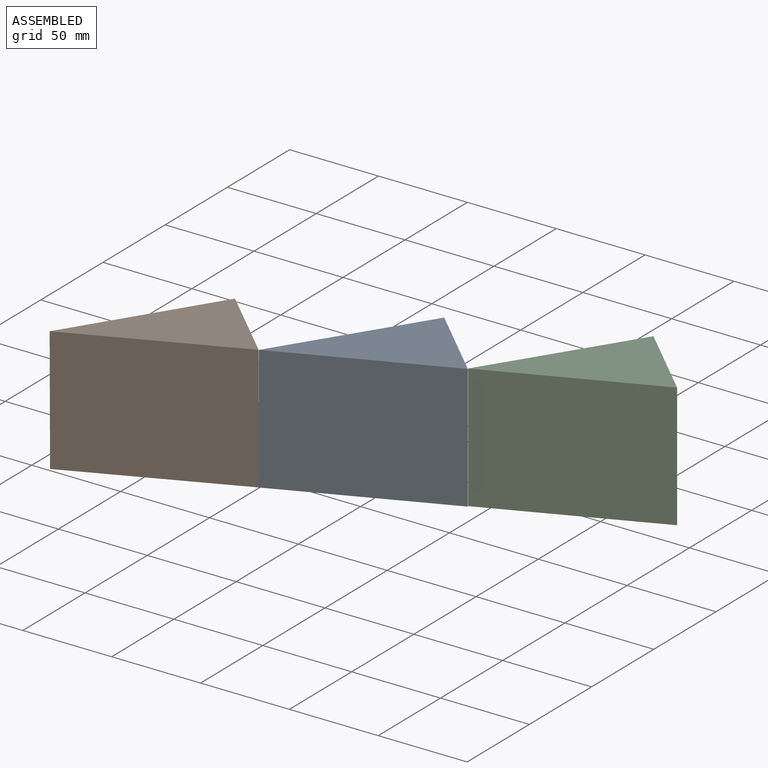
[diagram: assembled view]
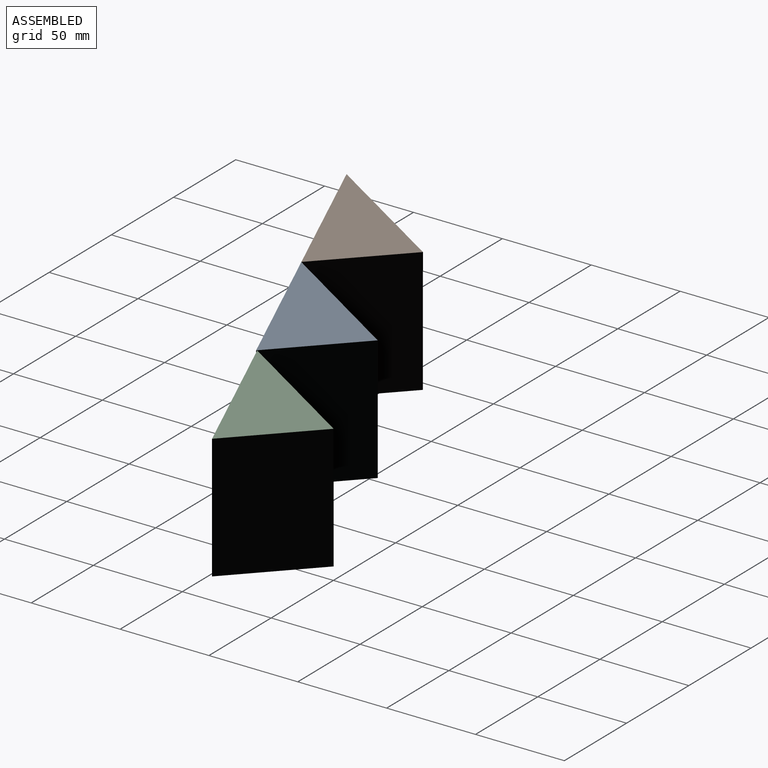
[diagram: assembled view, second angle]
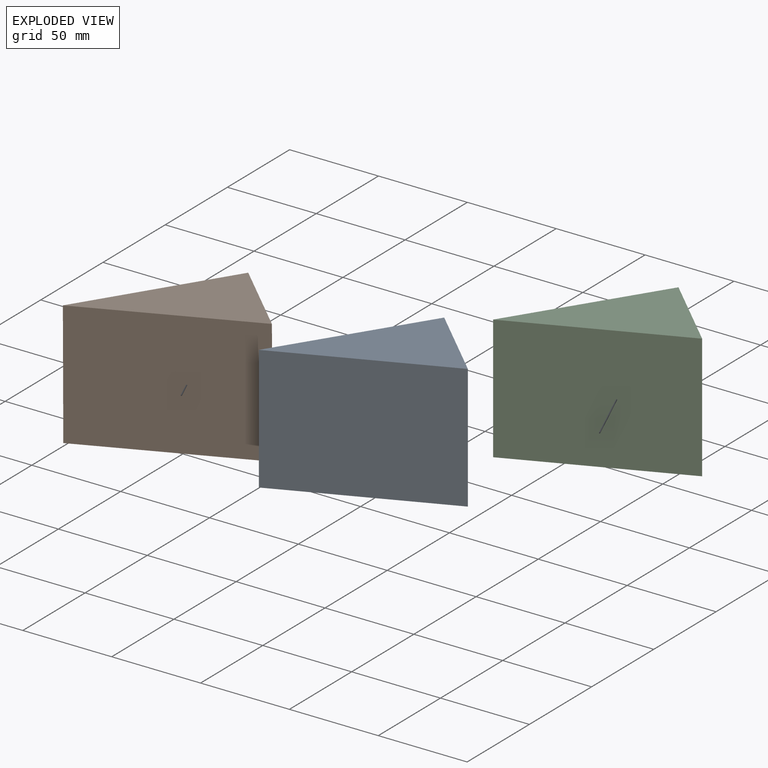
[diagram: exploded view]
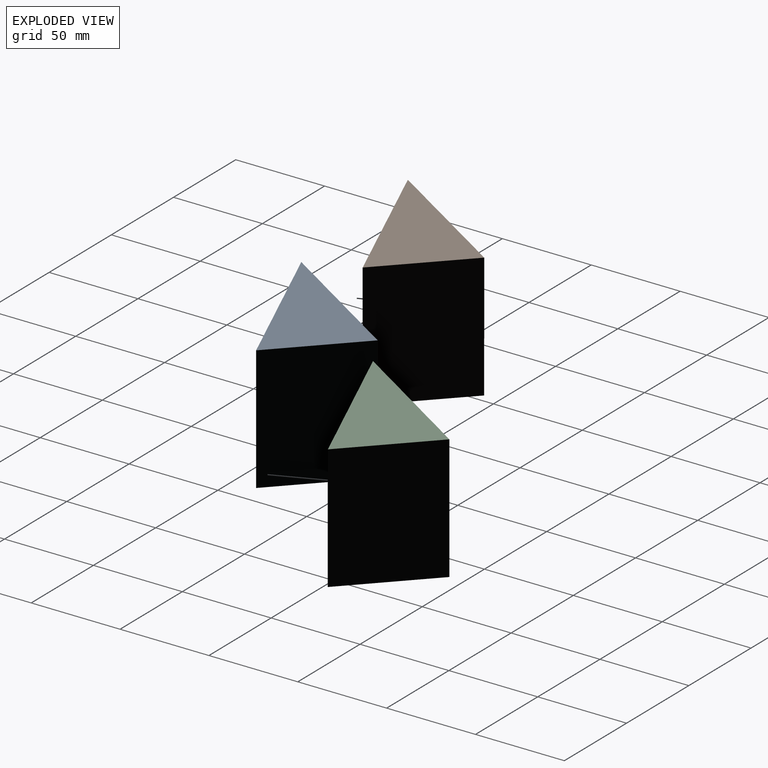
[diagram: exploded view, second angle]
ASSEMBLY  parts=3 mates=2
PART A: 5 faces, bbox 90.9x77.8x70 mm
  f0: plane 77.84x70mm, normal (-0.84,0.54,0), area 6467.4mm2, adj f1,f2,f3,f4
  f1: plane 90.86x70mm, normal (0.39,-0.92,0), area 6899.4mm2, adj f0,f2,f3,f4
  f2: plane 70x41.09mm, normal (0.69,0.72,0), area 3996.7mm2, adj f0,f1,f3,f4
  f3: plane 90.86x77.84mm, normal (0,0,1), area 2585.8mm2, adj f0,f1,f2
  f4: plane 90.86x77.84mm, normal (0,0,-1), area 2585.8mm2, adj f0,f1,f2
PART B: same geometry as A
PART C: same geometry as A
PLACE A t=(-7.84,5.74,-6.13)mm fixed
PLACE B rot(axis=(0.39,-0.92,0),0.2deg) t=(-98.62,-32.42,-6.29)mm
PLACE C t=(82.82,44.41,-6.13)mm
MATE slider A.f1 <-> C.f1  axis (0.39,-0.92,0) through (46.85,19.34,28.87)mm
MATE revolute A.f1 <-> B.f1  axis (0.39,-0.92,0) through (-44.01,-18.86,28.87)mm
